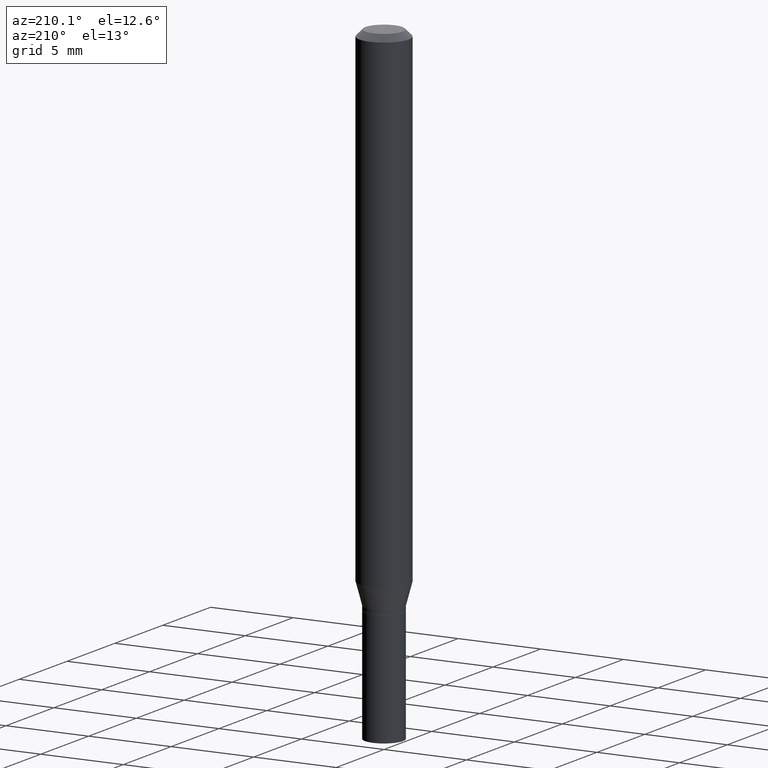
[diagram: clean part render]
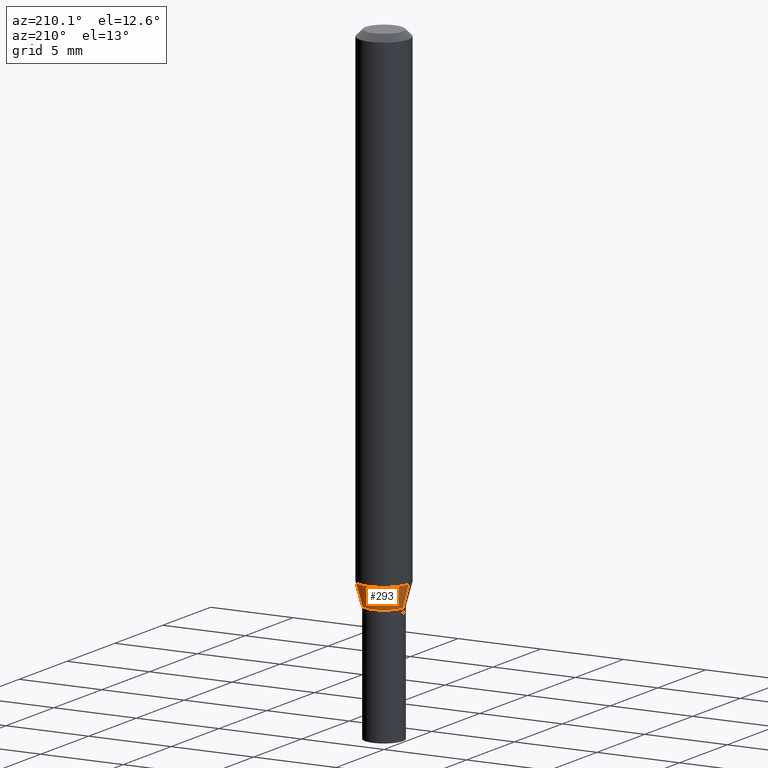
[diagram: same view with one face highlighted and labeled with its STEP entity id]
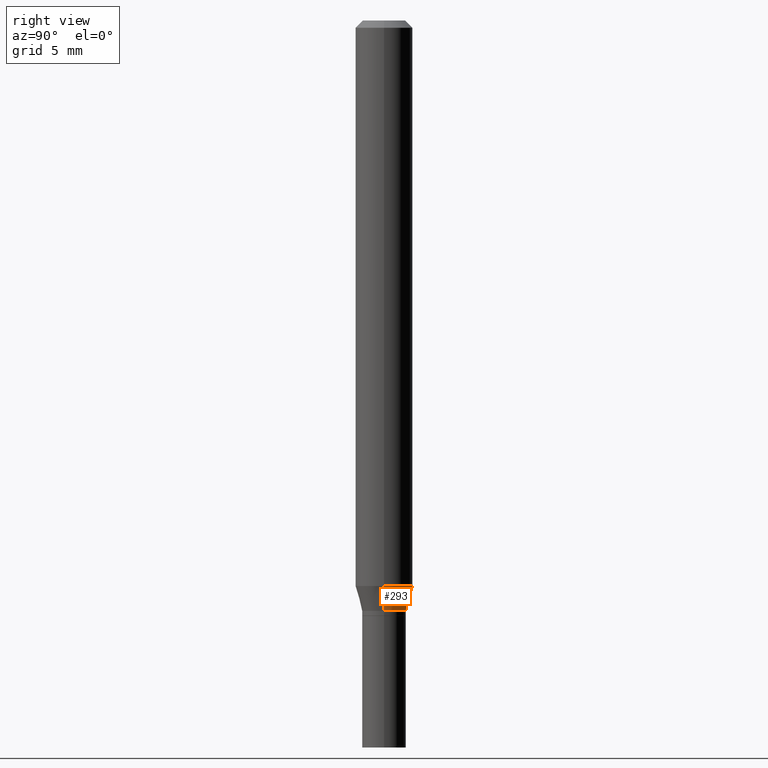
[diagram: same view with one face highlighted and labeled with its STEP entity id]
A machine part, auxiliary view. The second image highlights one B-rep face of the part: STEP entity #293.
A second angle (right view) of the same face is appended — the face is thin or edge-on in the first view.
In plain terms, the highlighted conical surface has half-angle 15 deg.
Its self-contained STEP definition (entity closure, byte-faithful):
#7 = FACE_OUTER_BOUND ( 'NONE', #338, .T. ) ;
#11 = DIRECTION ( 'NONE',  ( 1.000000000000000000, -6.982962677686271444E-15, 0.000000000000000000 ) ) ;
#29 = ORIENTED_EDGE ( 'NONE', *, *, #401, .T. ) ;
#32 = EDGE_CURVE ( 'NONE', #54, #263, #178, .T. ) ;
#54 = VERTEX_POINT ( 'NONE', #92 ) ;
#66 = VECTOR ( 'NONE', #122, 39.37007874015748854 ) ;
#69 = CARTESIAN_POINT ( 'NONE',  ( 2.853090065729641044E-29, -4.073456466645135867E-15, -1.166684301395928491 ) ) ;
#91 = DIRECTION ( 'NONE',  ( -0.2588190451025207950, 5.211531920934546309E-15, 0.9659258262890682012 ) ) ;
#92 = CARTESIAN_POINT ( 'NONE',  ( 0.04530000000000006244, -4.568952480010140578E-15, -1.218000000000000194 ) ) ;
#95 = CARTESIAN_POINT ( 'NONE',  ( -0.05904999999999999832, -3.653880981178796374E-15, -1.166684301395928491 ) ) ;
#122 = DIRECTION ( 'NONE',  ( 0.2588190451025207950, 1.565188264969625912E-15, 0.9659258262890682012 ) ) ;
#125 = DIRECTION ( 'NONE',  ( 1.000000000000000000, -6.982962677686271444E-15, 0.000000000000000000 ) ) ;
#130 = VERTEX_POINT ( 'NONE', #95 ) ;
#132 = CARTESIAN_POINT ( 'NONE',  ( 0.04530000000000006244, -4.568952480010140578E-15, -1.218000000000000194 ) ) ;
#161 = VERTEX_POINT ( 'NONE', #323 ) ;
#164 = CARTESIAN_POINT ( 'NONE',  ( 2.978581005933497146E-29, -4.252624270710952299E-15, -1.218000000000000194 ) ) ;
#167 = CONICAL_SURFACE ( 'NONE', #187, 0.04530000000000006244, 0.2617993877991495189 ) ;
#174 = EDGE_CURVE ( 'NONE', #161, #130, #219, .T. ) ;
#178 = CIRCLE ( 'NONE', #340, 0.04530000000000006244 ) ;
#187 = AXIS2_PLACEMENT_3D ( 'NONE', #329, #444, #11 ) ;
#216 = DIRECTION ( 'NONE',  ( 1.000000000000000000, -6.982962677686265133E-15, 0.000000000000000000 ) ) ;
#219 = CIRCLE ( 'NONE', #360, 0.05904999999999999832 ) ;
#230 = CARTESIAN_POINT ( 'NONE',  ( -0.04530000000000006244, -3.792314696295211225E-15, -1.218000000000000194 ) ) ;
#231 = EDGE_CURVE ( 'NONE', #54, #161, #283, .T. ) ;
#263 = VERTEX_POINT ( 'NONE', #230 ) ;
#278 = DIRECTION ( 'NONE',  ( -2.445468806185136597E-29, 3.491481338843145583E-15, 1.000000000000000000 ) ) ;
#283 = LINE ( 'NONE', #132, #66 ) ;
#293 = ADVANCED_FACE ( 'NONE', ( #7 ), #167, .T. ) ;
#310 = ORIENTED_EDGE ( 'NONE', *, *, #32, .T. ) ;
#323 = CARTESIAN_POINT ( 'NONE',  ( 0.05904999999999999832, -4.485800412762509998E-15, -1.166684301395928491 ) ) ;
#329 = CARTESIAN_POINT ( 'NONE',  ( 2.978581005933497146E-29, -4.252624270710952299E-15, -1.218000000000000194 ) ) ;
#334 = ORIENTED_EDGE ( 'NONE', *, *, #174, .F. ) ;
#338 = EDGE_LOOP ( 'NONE', ( #310, #29, #334, #384 ) ) ;
#340 = AXIS2_PLACEMENT_3D ( 'NONE', #164, #455, #125 ) ;
#360 = AXIS2_PLACEMENT_3D ( 'NONE', #69, #278, #216 ) ;
#362 = LINE ( 'NONE', #373, #435 ) ;
#373 = CARTESIAN_POINT ( 'NONE',  ( -0.04530000000000006244, -3.930748411411626076E-15, -1.218000000000000194 ) ) ;
#384 = ORIENTED_EDGE ( 'NONE', *, *, #231, .F. ) ;
#401 = EDGE_CURVE ( 'NONE', #263, #130, #362, .T. ) ;
#435 = VECTOR ( 'NONE', #91, 39.37007874015748854 ) ;
#444 = DIRECTION ( 'NONE',  ( -2.445468806185136597E-29, 3.491481338843145583E-15, 1.000000000000000000 ) ) ;
#455 = DIRECTION ( 'NONE',  ( -2.445468806185136597E-29, 3.491481338843145583E-15, 1.000000000000000000 ) ) ;